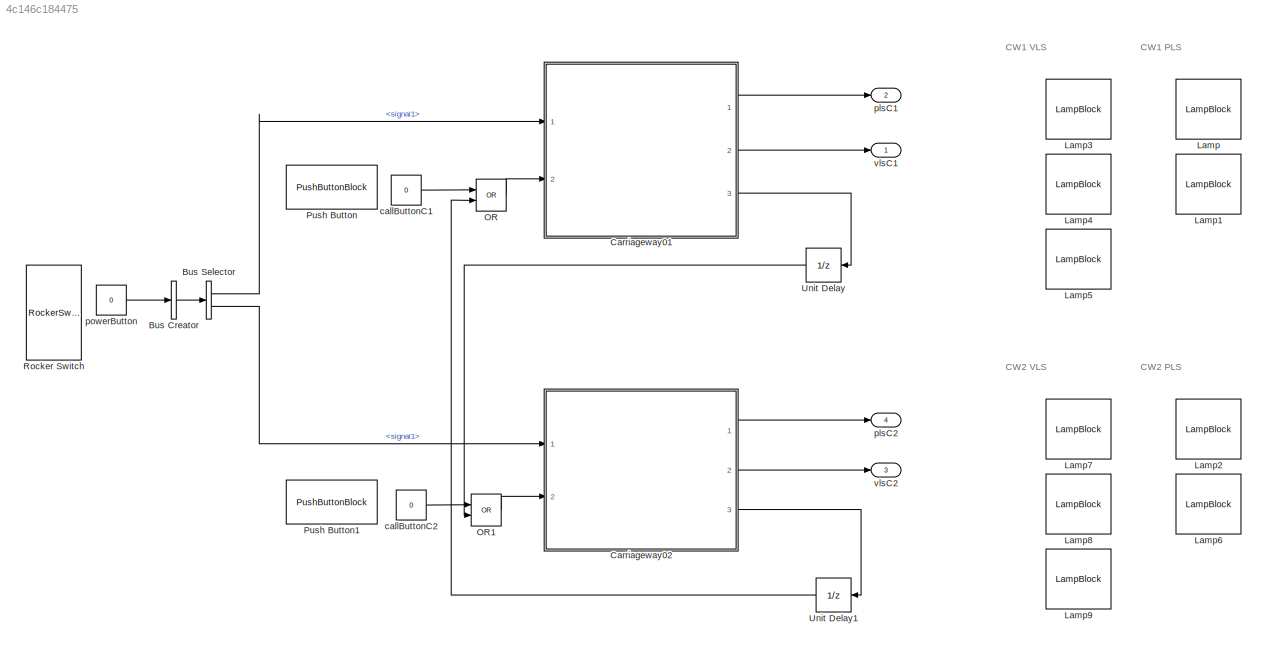
MODEL slx_4c146c184475
KIND model
CONFIG AbsTol = auto
CONFIG EnableMultiTasking = off
CONFIG FixedStep = 1
CONFIG MaxStep = auto
CONFIG MinStep = auto
CONFIG RelTol = 1e-3
CONFIG SampleTimeConstraint = Unconstrained
CONFIG SolverName = FixedStepDiscrete
CONFIG StartTime = 0.0
CONFIG StopTime = inf
WORKSPACE source: mxarray member
WORKSPACE callButtonPressedC1: Simulink.Parameter (value not decoded)
WORKSPACE callButtonPressedC2: Simulink.Parameter (value not decoded)
BLOCK [BusCreator] Bus Creator
  DisplayOption = bar
  InheritFromInputs = on
  Inputs = 1
  Ports = [1, 1]
BLOCK [BusSelector] Bus Selector
  OutputSignals = signal1,signal1
  Ports = [1, 2]
BLOCK [ModelReference] Carriageway01
  ModelNameDialog = carriageway.slx
  ModelReferenceVersion = 1.24
  Ports = [2, 3]
BLOCK [ModelReference] Carriageway02
  ModelNameDialog = carriageway.slx
  ModelReferenceVersion = 1.24
  Ports = [2, 3]
BLOCK [LampBlock] Lamp
  LabelPosition = Hide
BLOCK [LampBlock] Lamp1
  LabelPosition = Hide
BLOCK [LampBlock] Lamp2
  LabelPosition = Hide
BLOCK [LampBlock] Lamp3
  LabelPosition = Hide
BLOCK [LampBlock] Lamp4
  LabelPosition = Hide
BLOCK [LampBlock] Lamp5
  LabelPosition = Hide
BLOCK [LampBlock] Lamp6
  LabelPosition = Hide
BLOCK [LampBlock] Lamp7
  LabelPosition = Hide
BLOCK [LampBlock] Lamp8
  LabelPosition = Hide
BLOCK [LampBlock] Lamp9
  LabelPosition = Hide
BLOCK [Logic] OR
  AllPortsSameDT = off
  IconShape = distinctive
  Operator = OR
  OutDataTypeStr = boolean
  Ports = [2, 1]
BLOCK [Logic] OR1
  AllPortsSameDT = off
  IconShape = distinctive
  Operator = OR
  OutDataTypeStr = boolean
  Ports = [2, 1]
BLOCK [PushButtonBlock] Push Button
  OffValue = 0.000000
BLOCK [PushButtonBlock] Push Button1
  OffValue = 0.000000
BLOCK [RockerSwitchBlock] Rocker Switch
BLOCK [UnitDelay] Unit Delay
  HasFrameUpgradeWarning = on
BLOCK [UnitDelay] Unit Delay1
  HasFrameUpgradeWarning = on
BLOCK [Constant] callButtonC1
  Value = 0
BLOCK [Constant] callButtonC2
  Value = 0
BLOCK [Outport] plsC1
  Port = 2
BLOCK [Outport] plsC2
  Port = 4
BLOCK [Constant] powerButton
  OutDataTypeStr = Inherit: Inherit via back propagation
  Value = 0
BLOCK [Outport] vlsC1
BLOCK [Outport] vlsC2
  Port = 3
ANNOTATION (root): CW1 PLS
ANNOTATION (root): CW1 VLS
ANNOTATION (root): CW2 PLS
ANNOTATION (root): CW2 VLS
LINE Bus Creator:1 -> Bus Selector:1
LINE Bus Selector:1 -> Carriageway01:1
LINE Bus Selector:2 -> Carriageway02:1
LINE Carriageway01:1 -> plsC1:1
LINE Carriageway01:2 -> vlsC1:1
LINE Carriageway01:3 -> Unit Delay:1
LINE Carriageway02:1 -> plsC2:1
LINE Carriageway02:2 -> vlsC2:1
LINE Carriageway02:3 -> Unit Delay1:1
LINE OR1:1 -> Carriageway02:2
LINE OR:1 -> Carriageway01:2
LINE Unit Delay1:1 -> OR:2
LINE Unit Delay:1 -> OR1:2
LINE callButtonC1:1 -> OR:1
LINE callButtonC2:1 -> OR1:1
LINE powerButton:1 -> Bus Creator:1
